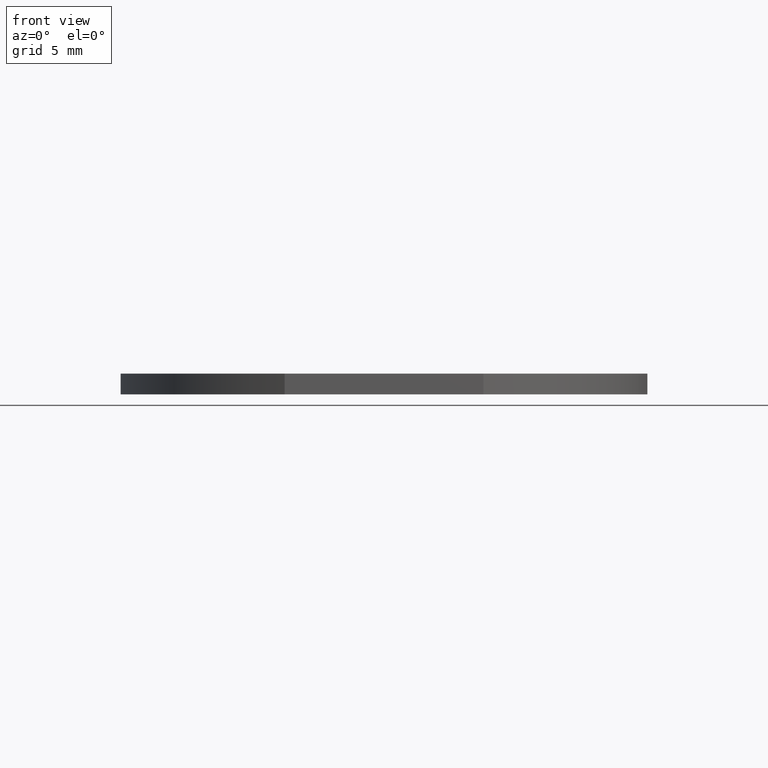
[diagram: clean part render]
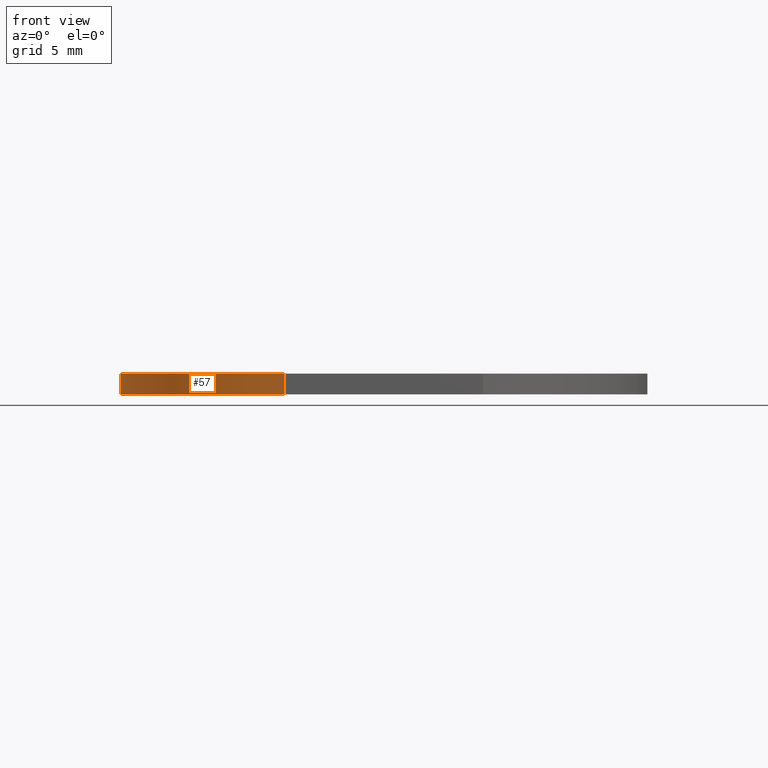
[diagram: same view with one face highlighted and labeled with its STEP entity id]
A machine part, front view. The second image highlights one B-rep face of the part: STEP entity #57.
In plain terms, the highlighted cylindrical surface (partial cylindrical patch) has radius 12.7 mm, axis along (-0, -0, -1).
Its self-contained STEP definition (entity closure, byte-faithful):
#3 = ORIENTED_EDGE ( 'NONE', *, *, #173, .T. ) ;
#10 = FACE_OUTER_BOUND ( 'NONE', #118, .T. ) ;
#15 = AXIS2_PLACEMENT_3D ( 'NONE', #189, #169, #157 ) ;
#17 = CARTESIAN_POINT ( 'NONE',  ( -4.795039103073091447, -11.75999999999999979, 1.000000000000000000 ) ) ;
#19 = CARTESIAN_POINT ( 'NONE',  ( -4.795039103073091447, -11.75999999999999979, 1.000000000000000000 ) ) ;
#36 = CARTESIAN_POINT ( 'NONE',  ( -12.69999999999999929, 0.0000000000000000000, 0.0000000000000000000 ) ) ;
#37 = ORIENTED_EDGE ( 'NONE', *, *, #144, .T. ) ;
#41 = VECTOR ( 'NONE', #121, 1000.000000000000000 ) ;
#51 = CARTESIAN_POINT ( 'NONE',  ( -12.69999999999999929, 0.0000000000000000000, 1.000000000000000000 ) ) ;
#55 = AXIS2_PLACEMENT_3D ( 'NONE', #73, #136, #120 ) ;
#57 = ADVANCED_FACE ( 'NONE', ( #10 ), #137, .T. ) ;
#62 = CIRCLE ( 'NONE', #15, 12.69999999999999929 ) ;
#73 = CARTESIAN_POINT ( 'NONE',  ( 0.0000000000000000000, 0.0000000000000000000, 1.000000000000000000 ) ) ;
#75 = CARTESIAN_POINT ( 'NONE',  ( 0.0000000000000000000, 0.0000000000000000000, 0.0000000000000000000 ) ) ;
#84 = CARTESIAN_POINT ( 'NONE',  ( -4.795039103073091447, -11.75999999999999979, 0.0000000000000000000 ) ) ;
#88 = DIRECTION ( 'NONE',  ( 0.0000000000000000000, 0.0000000000000000000, 1.000000000000000000 ) ) ;
#92 = LINE ( 'NONE', #17, #41 ) ;
#95 = LINE ( 'NONE', #163, #175 ) ;
#97 = VERTEX_POINT ( 'NONE', #84 ) ;
#116 = AXIS2_PLACEMENT_3D ( 'NONE', #75, #88, #206 ) ;
#118 = EDGE_LOOP ( 'NONE', ( #122, #3, #37, #198 ) ) ;
#120 = DIRECTION ( 'NONE',  ( -1.000000000000000000, 0.0000000000000000000, 0.0000000000000000000 ) ) ;
#121 = DIRECTION ( 'NONE',  ( 0.0000000000000000000, 0.0000000000000000000, 1.000000000000000000 ) ) ;
#122 = ORIENTED_EDGE ( 'NONE', *, *, #135, .F. ) ;
#129 = EDGE_CURVE ( 'NONE', #97, #185, #92, .T. ) ;
#135 = EDGE_CURVE ( 'NONE', #168, #185, #62, .T. ) ;
#136 = DIRECTION ( 'NONE',  ( -0.0000000000000000000, -0.0000000000000000000, -1.000000000000000000 ) ) ;
#137 = CYLINDRICAL_SURFACE ( 'NONE', #55, 12.69999999999999929 ) ;
#144 = EDGE_CURVE ( 'NONE', #203, #97, #159, .T. ) ;
#157 = DIRECTION ( 'NONE',  ( 1.000000000000000000, 0.0000000000000000000, 0.0000000000000000000 ) ) ;
#159 = CIRCLE ( 'NONE', #116, 12.69999999999999929 ) ;
#163 = CARTESIAN_POINT ( 'NONE',  ( -12.69999999999999929, 0.0000000000000000000, 1.000000000000000000 ) ) ;
#168 = VERTEX_POINT ( 'NONE', #51 ) ;
#169 = DIRECTION ( 'NONE',  ( 0.0000000000000000000, 0.0000000000000000000, 1.000000000000000000 ) ) ;
#173 = EDGE_CURVE ( 'NONE', #168, #203, #95, .T. ) ;
#175 = VECTOR ( 'NONE', #177, 1000.000000000000000 ) ;
#177 = DIRECTION ( 'NONE',  ( -0.0000000000000000000, -0.0000000000000000000, -1.000000000000000000 ) ) ;
#185 = VERTEX_POINT ( 'NONE', #19 ) ;
#189 = CARTESIAN_POINT ( 'NONE',  ( 0.0000000000000000000, 0.0000000000000000000, 1.000000000000000000 ) ) ;
#198 = ORIENTED_EDGE ( 'NONE', *, *, #129, .T. ) ;
#203 = VERTEX_POINT ( 'NONE', #36 ) ;
#206 = DIRECTION ( 'NONE',  ( 1.000000000000000000, 0.0000000000000000000, 0.0000000000000000000 ) ) ;